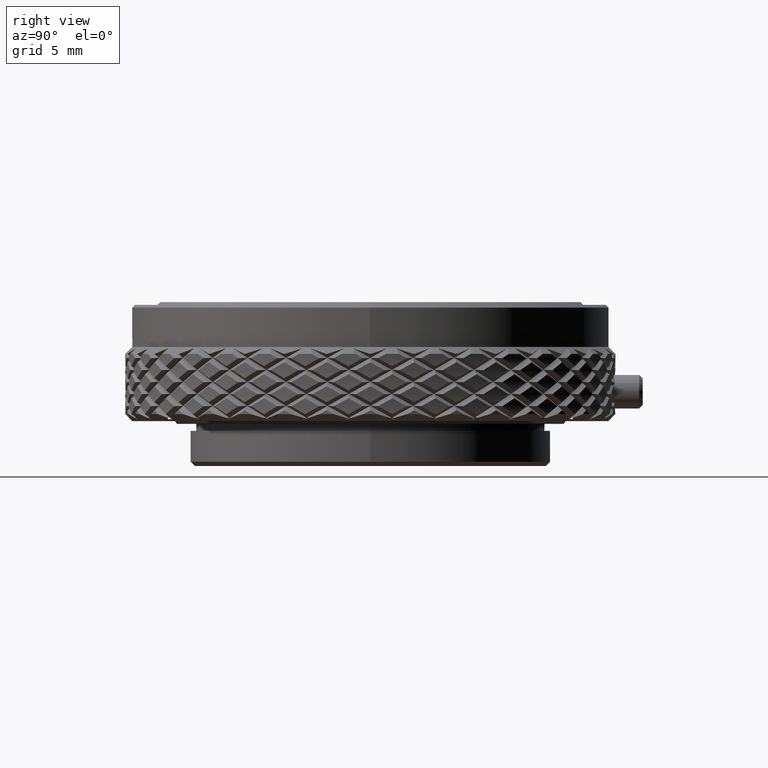
[diagram: clean part render]
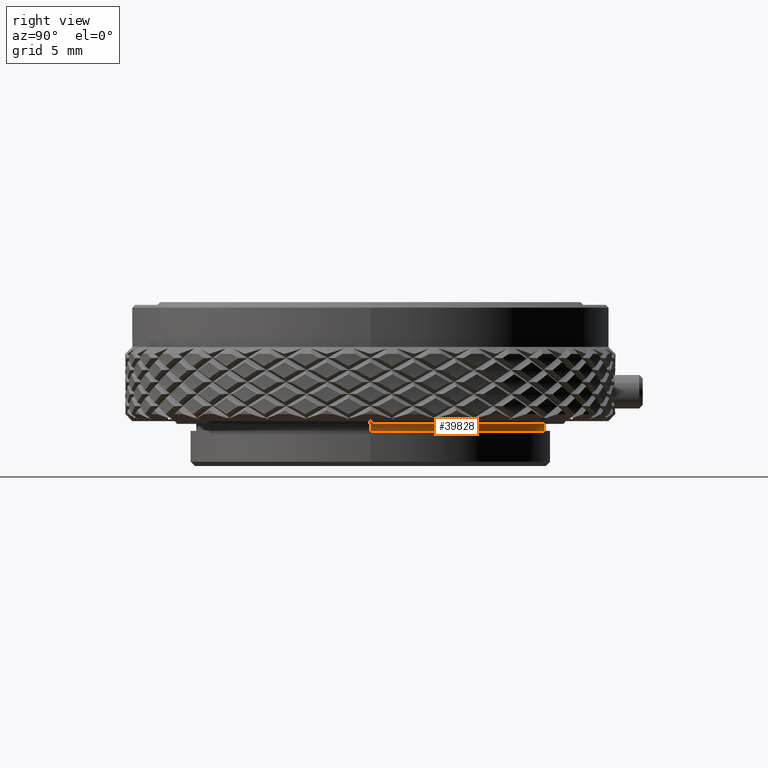
[diagram: same view with one face highlighted and labeled with its STEP entity id]
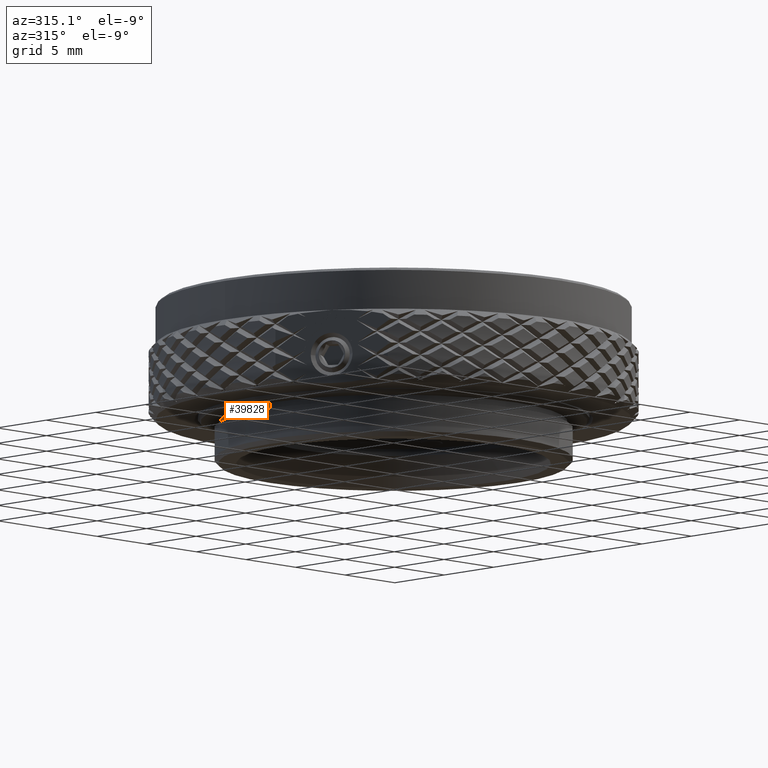
[diagram: same view with one face highlighted and labeled with its STEP entity id]
A machine part, right view. The second image highlights one B-rep face of the part: STEP entity #39828.
A second angle (auxiliary view) of the same face is appended — the face is thin or edge-on in the first view.
In plain terms, the highlighted cylindrical surface (partial cylindrical patch) has radius 12.43 mm, axis along (0, 0, 1).
Its self-contained STEP definition (entity closure, byte-faithful):
#2327 = CARTESIAN_POINT ( 'NONE',  ( 12.42999999999999972, 0.000000000000000000, 2.500000000000000000 ) ) ;
#2543 = AXIS2_PLACEMENT_3D ( 'NONE', #65389, #58871, #78642 ) ;
#10729 = AXIS2_PLACEMENT_3D ( 'NONE', #29403, #75850, #23436 ) ;
#11253 = CARTESIAN_POINT ( 'NONE',  ( 12.42999999999999972, 0.000000000000000000, 2.500000000000000000 ) ) ;
#15312 = VERTEX_POINT ( 'NONE', #31341 ) ;
#17517 = ORIENTED_EDGE ( 'NONE', *, *, #44758, .T. ) ;
#23436 = DIRECTION ( 'NONE',  ( -1.000000000000000000, 0.000000000000000000, 0.000000000000000000 ) ) ;
#26236 = ORIENTED_EDGE ( 'NONE', *, *, #48270, .F. ) ;
#27163 = ORIENTED_EDGE ( 'NONE', *, *, #76361, .F. ) ;
#29403 = CARTESIAN_POINT ( 'NONE',  ( 0.000000000000000000, 0.000000000000000000, 3.000000000000000000 ) ) ;
#30351 = CARTESIAN_POINT ( 'NONE',  ( 0.000000000000000000, 0.000000000000000000, 2.500000000000000000 ) ) ;
#31341 = CARTESIAN_POINT ( 'NONE',  ( -12.42999999999999972, 1.522235971340160092E-15, 3.000000000000000000 ) ) ;
#32188 = CYLINDRICAL_SURFACE ( 'NONE', #2543, 12.42999999999999972 ) ;
#35879 = VERTEX_POINT ( 'NONE', #43793 ) ;
#36146 = CARTESIAN_POINT ( 'NONE',  ( -12.42999999999999972, 1.522235971340160092E-15, 2.500000000000000000 ) ) ;
#38311 = EDGE_LOOP ( 'NONE', ( #27163, #17517, #45028, #26236 ) ) ;
#39403 = CIRCLE ( 'NONE', #10729, 12.42999999999999972 ) ;
#39465 = FACE_OUTER_BOUND ( 'NONE', #38311, .T. ) ;
#39828 = ADVANCED_FACE ( 'NONE', ( #39465 ), #32188, .T. ) ;
#43793 = CARTESIAN_POINT ( 'NONE',  ( 12.42999999999999972, 0.000000000000000000, 3.000000000000000000 ) ) ;
#44758 = EDGE_CURVE ( 'NONE', #65597, #15312, #63178, .T. ) ;
#45028 = ORIENTED_EDGE ( 'NONE', *, *, #62180, .T. ) ;
#48270 = EDGE_CURVE ( 'NONE', #62844, #35879, #55127, .T. ) ;
#48537 = CARTESIAN_POINT ( 'NONE',  ( -12.42999999999999972, 1.522235971340160092E-15, 2.500000000000000000 ) ) ;
#49282 = DIRECTION ( 'NONE',  ( 0.000000000000000000, 0.000000000000000000, -1.000000000000000000 ) ) ;
#54268 = DIRECTION ( 'NONE',  ( 0.000000000000000000, 0.000000000000000000, 1.000000000000000000 ) ) ;
#54826 = CIRCLE ( 'NONE', #69905, 12.42999999999999972 ) ;
#55127 = LINE ( 'NONE', #2327, #77658 ) ;
#58871 = DIRECTION ( 'NONE',  ( 0.000000000000000000, 0.000000000000000000, 1.000000000000000000 ) ) ;
#62180 = EDGE_CURVE ( 'NONE', #15312, #35879, #39403, .T. ) ;
#62844 = VERTEX_POINT ( 'NONE', #11253 ) ;
#63178 = LINE ( 'NONE', #48537, #74345 ) ;
#65389 = CARTESIAN_POINT ( 'NONE',  ( 0.000000000000000000, 0.000000000000000000, 2.500000000000000000 ) ) ;
#65597 = VERTEX_POINT ( 'NONE', #36146 ) ;
#69905 = AXIS2_PLACEMENT_3D ( 'NONE', #30351, #49282, #75953 ) ;
#74345 = VECTOR ( 'NONE', #82084, 1000.000000000000000 ) ;
#75850 = DIRECTION ( 'NONE',  ( 0.000000000000000000, 0.000000000000000000, -1.000000000000000000 ) ) ;
#75953 = DIRECTION ( 'NONE',  ( -1.000000000000000000, 0.000000000000000000, 0.000000000000000000 ) ) ;
#76361 = EDGE_CURVE ( 'NONE', #65597, #62844, #54826, .T. ) ;
#77658 = VECTOR ( 'NONE', #54268, 1000.000000000000000 ) ;
#78642 = DIRECTION ( 'NONE',  ( 1.000000000000000000, 0.000000000000000000, 0.000000000000000000 ) ) ;
#82084 = DIRECTION ( 'NONE',  ( 0.000000000000000000, 0.000000000000000000, 1.000000000000000000 ) ) ;